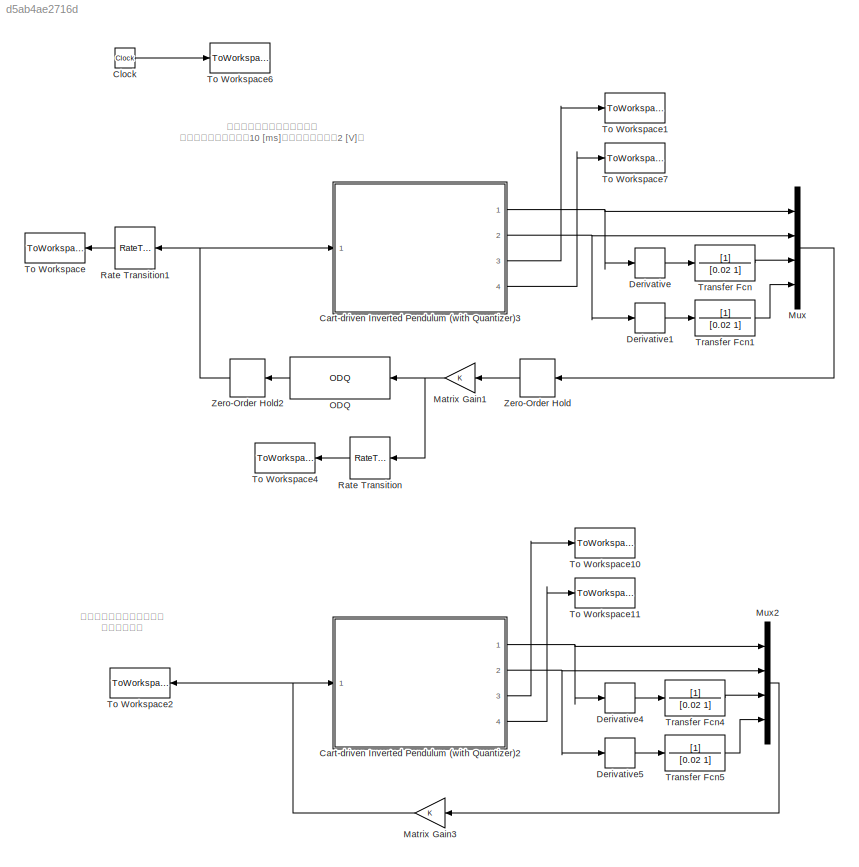
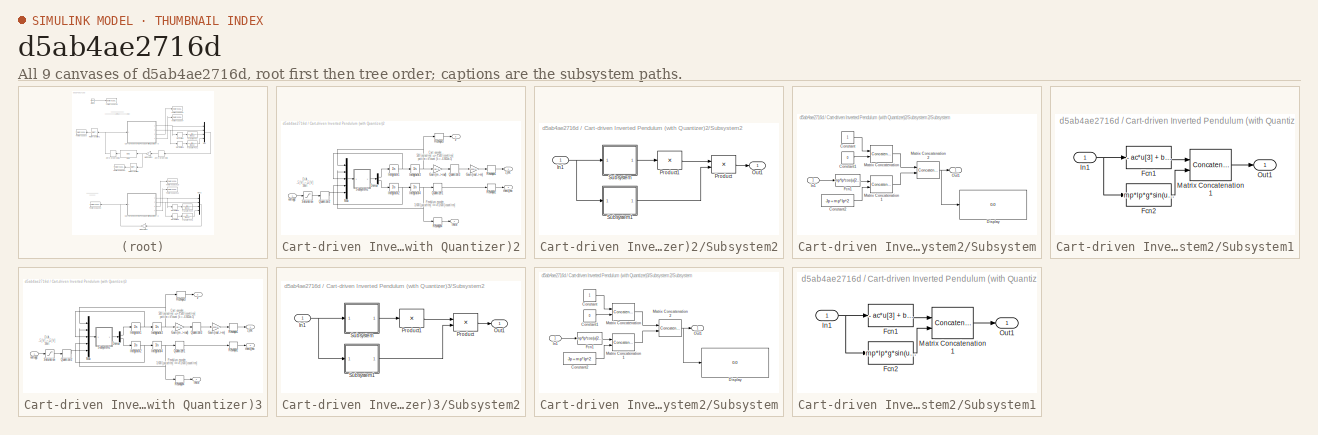
[diagram: thumbnail index - all 9 canvases of the model, root first then tree order]
MODEL slx_d5ab4ae2716d
KIND model
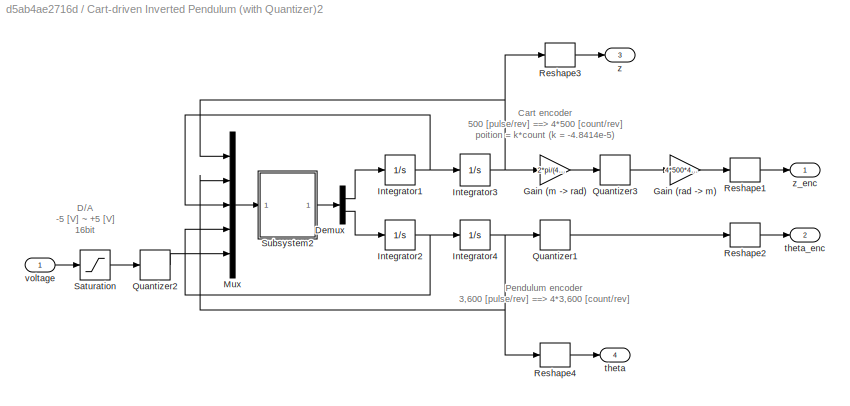
BLOCK [SubSystem] Cart-driven Inverted Pendulum (with Quantizer)2
  FunctionWithSeparateData = off
  MaskHideContents = off
  MinAlgLoopOccurrences = off
  Opaque = off
  Ports = [1, 4]
  PropExecContextOutsideSubsystem = off
  RTWSystemCode = Auto
  RequestExecContextInheritance = off
BLOCK [Demux] Cart-driven Inverted Pendulum (with Quantizer)2/Demux
  DisplayOption = bar
  Outputs = 2
  Ports = [1, 2]
BLOCK [Gain] Cart-driven Inverted Pendulum (with Quantizer)2/Gain (m -> rad)
  Gain = 2*pi/(4*500*4.8414e-5)
BLOCK [Gain] Cart-driven Inverted Pendulum (with Quantizer)2/Gain (rad -> m)
  Gain = 4*500*4.8414e-5/(2*pi)
BLOCK [Integrator] Cart-driven Inverted Pendulum (with Quantizer)2/Integrator1
  InitialCondition = dz_0
  Ports = [1, 1]
BLOCK [Integrator] Cart-driven Inverted Pendulum (with Quantizer)2/Integrator2
  InitialCondition = dtheta_0
  Ports = [1, 1]
BLOCK [Integrator] Cart-driven Inverted Pendulum (with Quantizer)2/Integrator3
  InitialCondition = z_0
  Ports = [1, 1]
BLOCK [Integrator] Cart-driven Inverted Pendulum (with Quantizer)2/Integrator4
  InitialCondition = theta_0
  Ports = [1, 1]
BLOCK [Mux] Cart-driven Inverted Pendulum (with Quantizer)2/Mux
  DisplayOption = bar
  Inputs = 5
  Ports = [5, 1]
BLOCK [Quantizer] Cart-driven Inverted Pendulum (with Quantizer)2/Quantizer1
  QuantizationInterval = 2*pi/(4*3600)
BLOCK [Quantizer] Cart-driven Inverted Pendulum (with Quantizer)2/Quantizer2
  QuantizationInterval = 10/2^(16)
BLOCK [Quantizer] Cart-driven Inverted Pendulum (with Quantizer)2/Quantizer3
  QuantizationInterval = 2*pi/(4*500)
BLOCK [Reshape] Cart-driven Inverted Pendulum (with Quantizer)2/Reshape1
  Ports = [1, 1]
BLOCK [Reshape] Cart-driven Inverted Pendulum (with Quantizer)2/Reshape2
  Ports = [1, 1]
BLOCK [Reshape] Cart-driven Inverted Pendulum (with Quantizer)2/Reshape3
  Ports = [1, 1]
BLOCK [Reshape] Cart-driven Inverted Pendulum (with Quantizer)2/Reshape4
  Ports = [1, 1]
BLOCK [Saturate] Cart-driven Inverted Pendulum (with Quantizer)2/Saturation
  InputPortMap = u0
  LowerLimit = -5
  Ports = [1, 1]
  UpperLimit = 5
BLOCK [SubSystem] Cart-driven Inverted Pendulum (with Quantizer)2/Subsystem2
  FunctionWithSeparateData = off
  MaskHideContents = off
  MinAlgLoopOccurrences = off
  Opaque = off
  Ports = [1, 1]
  PropExecContextOutsideSubsystem = off
  RTWSystemCode = Auto
  RequestExecContextInheritance = off
BLOCK [Inport] Cart-driven Inverted Pendulum (with Quantizer)2/Subsystem2/In1
  IconDisplay = Port number
BLOCK [Outport] Cart-driven Inverted Pendulum (with Quantizer)2/Subsystem2/Out1
  IconDisplay = Port number
BLOCK [Product] Cart-driven Inverted Pendulum (with Quantizer)2/Subsystem2/Product
  Multiplication = Matrix(*)
  Ports = [2, 1]
  RndMeth = Floor
BLOCK [Product] Cart-driven Inverted Pendulum (with Quantizer)2/Subsystem2/Product1
  Inputs = /
  Multiplication = Matrix(*)
  Ports = [1, 1]
  RndMeth = Floor
BLOCK [SubSystem] Cart-driven Inverted Pendulum (with Quantizer)2/Subsystem2/Subsystem
  FunctionWithSeparateData = off
  MaskHideContents = off
  MinAlgLoopOccurrences = off
  Opaque = off
  Ports = [1, 1]
  PropExecContextOutsideSubsystem = off
  RTWSystemCode = Auto
  RequestExecContextInheritance = off
BLOCK [Constant] Cart-driven Inverted Pendulum (with Quantizer)2/Subsystem2/Subsystem/Constant
BLOCK [Constant] Cart-driven Inverted Pendulum (with Quantizer)2/Subsystem2/Subsystem/Constant1
  Value = 0
BLOCK [Constant] Cart-driven Inverted Pendulum (with Quantizer)2/Subsystem2/Subsystem/Constant2
  Value = Jp + mp*lp^2
BLOCK [Display] Cart-driven Inverted Pendulum (with Quantizer)2/Subsystem2/Subsystem/Display
  Decimation = 1
  Lockdown = off
  Ports = [1]
BLOCK [Fcn] Cart-driven Inverted Pendulum (with Quantizer)2/Subsystem2/Subsystem/Fcn1
  Expr = mp*lp*cos(u[2])
BLOCK [Inport] Cart-driven Inverted Pendulum (with Quantizer)2/Subsystem2/Subsystem/In1
  IconDisplay = Port number
BLOCK [Concatenate] Cart-driven Inverted Pendulum (with Quantizer)2/Subsystem2/Subsystem/Matrix Concatenation
  ConcatenateDimension = 2
  Mode = Multidimensional array
  Ports = [2, 1]
BLOCK [Concatenate] Cart-driven Inverted Pendulum (with Quantizer)2/Subsystem2/Subsystem/Matrix Concatenation1
  ConcatenateDimension = 2
  Mode = Multidimensional array
  Ports = [2, 1]
BLOCK [Concatenate] Cart-driven Inverted Pendulum (with Quantizer)2/Subsystem2/Subsystem/Matrix Concatenation2
  Mode = Multidimensional array
  Ports = [2, 1]
BLOCK [Outport] Cart-driven Inverted Pendulum (with Quantizer)2/Subsystem2/Subsystem/Out1
  IconDisplay = Port number
BLOCK [SubSystem] Cart-driven Inverted Pendulum (with Quantizer)2/Subsystem2/Subsystem1
  FunctionWithSeparateData = off
  MaskHideContents = off
  MinAlgLoopOccurrences = off
  Opaque = off
  Ports = [1, 1]
  PropExecContextOutsideSubsystem = off
  RTWSystemCode = Auto
  RequestExecContextInheritance = off
BLOCK [Fcn] Cart-driven Inverted Pendulum (with Quantizer)2/Subsystem2/Subsystem1/Fcn1
  Expr = - ac*u[3] + bc*u[5]
BLOCK [Fcn] Cart-driven Inverted Pendulum (with Quantizer)2/Subsystem2/Subsystem1/Fcn2
  Expr = mp*lp*g*sin(u[2]) - mup*u[4]
BLOCK [Inport] Cart-driven Inverted Pendulum (with Quantizer)2/Subsystem2/Subsystem1/In1
  IconDisplay = Port number
BLOCK [Concatenate] Cart-driven Inverted Pendulum (with Quantizer)2/Subsystem2/Subsystem1/Matrix Concatenation1
  Mode = Multidimensional array
  Ports = [2, 1]
BLOCK [Outport] Cart-driven Inverted Pendulum (with Quantizer)2/Subsystem2/Subsystem1/Out1
  IconDisplay = Port number
BLOCK [Outport] Cart-driven Inverted Pendulum (with Quantizer)2/theta
  IconDisplay = Port number
  Port = 4
BLOCK [Outport] Cart-driven Inverted Pendulum (with Quantizer)2/theta_enc
  IconDisplay = Port number
  Port = 2
BLOCK [Inport] Cart-driven Inverted Pendulum (with Quantizer)2/voltage
  IconDisplay = Port number
BLOCK [Outport] Cart-driven Inverted Pendulum (with Quantizer)2/z
  IconDisplay = Port number
  Port = 3
BLOCK [Outport] Cart-driven Inverted Pendulum (with Quantizer)2/z_enc
  IconDisplay = Port number
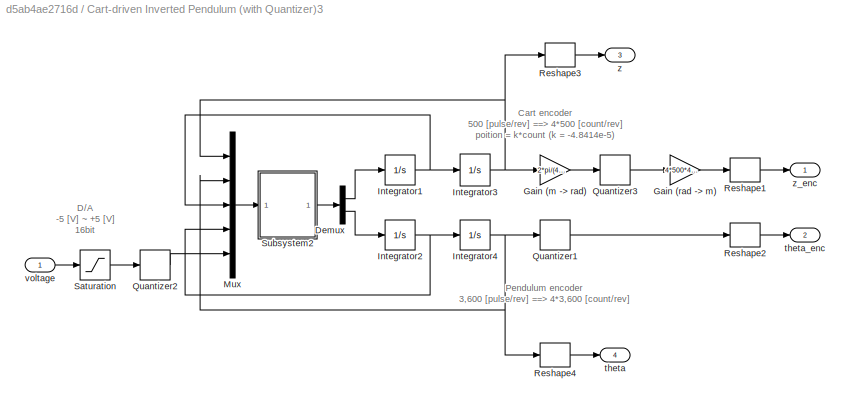
BLOCK [SubSystem] Cart-driven Inverted Pendulum (with Quantizer)3
  FunctionWithSeparateData = off
  MaskHideContents = off
  MinAlgLoopOccurrences = off
  Opaque = off
  Ports = [1, 4]
  PropExecContextOutsideSubsystem = off
  RTWSystemCode = Auto
  RequestExecContextInheritance = off
BLOCK [Demux] Cart-driven Inverted Pendulum (with Quantizer)3/Demux
  DisplayOption = bar
  Outputs = 2
  Ports = [1, 2]
BLOCK [Gain] Cart-driven Inverted Pendulum (with Quantizer)3/Gain (m -> rad)
  Gain = 2*pi/(4*500*4.8414e-5)
BLOCK [Gain] Cart-driven Inverted Pendulum (with Quantizer)3/Gain (rad -> m)
  Gain = 4*500*4.8414e-5/(2*pi)
BLOCK [Integrator] Cart-driven Inverted Pendulum (with Quantizer)3/Integrator1
  InitialCondition = dz_0
  Ports = [1, 1]
BLOCK [Integrator] Cart-driven Inverted Pendulum (with Quantizer)3/Integrator2
  InitialCondition = dtheta_0
  Ports = [1, 1]
BLOCK [Integrator] Cart-driven Inverted Pendulum (with Quantizer)3/Integrator3
  InitialCondition = z_0
  Ports = [1, 1]
BLOCK [Integrator] Cart-driven Inverted Pendulum (with Quantizer)3/Integrator4
  InitialCondition = theta_0
  Ports = [1, 1]
BLOCK [Mux] Cart-driven Inverted Pendulum (with Quantizer)3/Mux
  DisplayOption = bar
  Inputs = 5
  Ports = [5, 1]
BLOCK [Quantizer] Cart-driven Inverted Pendulum (with Quantizer)3/Quantizer1
  QuantizationInterval = 2*pi/(4*3600)
BLOCK [Quantizer] Cart-driven Inverted Pendulum (with Quantizer)3/Quantizer2
  QuantizationInterval = 10/2^(16)
BLOCK [Quantizer] Cart-driven Inverted Pendulum (with Quantizer)3/Quantizer3
  QuantizationInterval = 2*pi/(4*500)
BLOCK [Reshape] Cart-driven Inverted Pendulum (with Quantizer)3/Reshape1
  Ports = [1, 1]
BLOCK [Reshape] Cart-driven Inverted Pendulum (with Quantizer)3/Reshape2
  Ports = [1, 1]
BLOCK [Reshape] Cart-driven Inverted Pendulum (with Quantizer)3/Reshape3
  Ports = [1, 1]
BLOCK [Reshape] Cart-driven Inverted Pendulum (with Quantizer)3/Reshape4
  Ports = [1, 1]
BLOCK [Saturate] Cart-driven Inverted Pendulum (with Quantizer)3/Saturation
  InputPortMap = u0
  LowerLimit = -5
  Ports = [1, 1]
  UpperLimit = 5
BLOCK [SubSystem] Cart-driven Inverted Pendulum (with Quantizer)3/Subsystem2
  FunctionWithSeparateData = off
  MaskHideContents = off
  MinAlgLoopOccurrences = off
  Opaque = off
  Ports = [1, 1]
  PropExecContextOutsideSubsystem = off
  RTWSystemCode = Auto
  RequestExecContextInheritance = off
BLOCK [Inport] Cart-driven Inverted Pendulum (with Quantizer)3/Subsystem2/In1
  IconDisplay = Port number
BLOCK [Outport] Cart-driven Inverted Pendulum (with Quantizer)3/Subsystem2/Out1
  IconDisplay = Port number
BLOCK [Product] Cart-driven Inverted Pendulum (with Quantizer)3/Subsystem2/Product
  Multiplication = Matrix(*)
  Ports = [2, 1]
  RndMeth = Floor
BLOCK [Product] Cart-driven Inverted Pendulum (with Quantizer)3/Subsystem2/Product1
  Inputs = /
  Multiplication = Matrix(*)
  Ports = [1, 1]
  RndMeth = Floor
BLOCK [SubSystem] Cart-driven Inverted Pendulum (with Quantizer)3/Subsystem2/Subsystem
  FunctionWithSeparateData = off
  MaskHideContents = off
  MinAlgLoopOccurrences = off
  Opaque = off
  Ports = [1, 1]
  PropExecContextOutsideSubsystem = off
  RTWSystemCode = Auto
  RequestExecContextInheritance = off
BLOCK [Constant] Cart-driven Inverted Pendulum (with Quantizer)3/Subsystem2/Subsystem/Constant
BLOCK [Constant] Cart-driven Inverted Pendulum (with Quantizer)3/Subsystem2/Subsystem/Constant1
  Value = 0
BLOCK [Constant] Cart-driven Inverted Pendulum (with Quantizer)3/Subsystem2/Subsystem/Constant2
  Value = Jp + mp*lp^2
BLOCK [Display] Cart-driven Inverted Pendulum (with Quantizer)3/Subsystem2/Subsystem/Display
  Decimation = 1
  Lockdown = off
  Ports = [1]
BLOCK [Fcn] Cart-driven Inverted Pendulum (with Quantizer)3/Subsystem2/Subsystem/Fcn1
  Expr = mp*lp*cos(u[2])
BLOCK [Inport] Cart-driven Inverted Pendulum (with Quantizer)3/Subsystem2/Subsystem/In1
  IconDisplay = Port number
BLOCK [Concatenate] Cart-driven Inverted Pendulum (with Quantizer)3/Subsystem2/Subsystem/Matrix Concatenation
  ConcatenateDimension = 2
  Mode = Multidimensional array
  Ports = [2, 1]
BLOCK [Concatenate] Cart-driven Inverted Pendulum (with Quantizer)3/Subsystem2/Subsystem/Matrix Concatenation1
  ConcatenateDimension = 2
  Mode = Multidimensional array
  Ports = [2, 1]
BLOCK [Concatenate] Cart-driven Inverted Pendulum (with Quantizer)3/Subsystem2/Subsystem/Matrix Concatenation2
  Mode = Multidimensional array
  Ports = [2, 1]
BLOCK [Outport] Cart-driven Inverted Pendulum (with Quantizer)3/Subsystem2/Subsystem/Out1
  IconDisplay = Port number
BLOCK [SubSystem] Cart-driven Inverted Pendulum (with Quantizer)3/Subsystem2/Subsystem1
  FunctionWithSeparateData = off
  MaskHideContents = off
  MinAlgLoopOccurrences = off
  Opaque = off
  Ports = [1, 1]
  PropExecContextOutsideSubsystem = off
  RTWSystemCode = Auto
  RequestExecContextInheritance = off
BLOCK [Fcn] Cart-driven Inverted Pendulum (with Quantizer)3/Subsystem2/Subsystem1/Fcn1
  Expr = - ac*u[3] + bc*u[5]
BLOCK [Fcn] Cart-driven Inverted Pendulum (with Quantizer)3/Subsystem2/Subsystem1/Fcn2
  Expr = mp*lp*g*sin(u[2]) - mup*u[4]
BLOCK [Inport] Cart-driven Inverted Pendulum (with Quantizer)3/Subsystem2/Subsystem1/In1
  IconDisplay = Port number
BLOCK [Concatenate] Cart-driven Inverted Pendulum (with Quantizer)3/Subsystem2/Subsystem1/Matrix Concatenation1
  Mode = Multidimensional array
  Ports = [2, 1]
BLOCK [Outport] Cart-driven Inverted Pendulum (with Quantizer)3/Subsystem2/Subsystem1/Out1
  IconDisplay = Port number
BLOCK [Outport] Cart-driven Inverted Pendulum (with Quantizer)3/theta
  IconDisplay = Port number
  Port = 4
BLOCK [Outport] Cart-driven Inverted Pendulum (with Quantizer)3/theta_enc
  IconDisplay = Port number
  Port = 2
BLOCK [Inport] Cart-driven Inverted Pendulum (with Quantizer)3/voltage
  IconDisplay = Port number
BLOCK [Outport] Cart-driven Inverted Pendulum (with Quantizer)3/z
  IconDisplay = Port number
  Port = 3
BLOCK [Outport] Cart-driven Inverted Pendulum (with Quantizer)3/z_enc
  IconDisplay = Port number
BLOCK [Clock] Clock
BLOCK [Derivative] Derivative
BLOCK [Derivative] Derivative1
BLOCK [Derivative] Derivative4
BLOCK [Derivative] Derivative5
BLOCK [Gain] Matrix Gain1
  Gain = K
  Multiplication = Matrix(K*u)
BLOCK [Gain] Matrix Gain3
  Gain = K
  Multiplication = Matrix(K*u)
BLOCK [Mux] Mux
  DisplayOption = bar
  Ports = [4, 1]
BLOCK [Mux] Mux2
  DisplayOption = bar
  Ports = [4, 1]
BLOCK [Reference] ODQ  REF=odqblock/ODQ  (lib defined in mdl_3284093aac4b)
  A = Sigma_Q.a
  B1 = Sigma_Q.b1
  B2 = Sigma_Q.b2
  C = Sigma_Q.c
  Ports = [1, 1]
  SourceBlock = odqblock/ODQ
  SourceType = Opitimal Dynamic Quantizer
  Ts = ts
  d = d
BLOCK [RateTransition] Rate Transition
  OutPortSampleTime = 0.001
BLOCK [RateTransition] Rate Transition1
  OutPortSampleTime = 0.001
BLOCK [ToWorkspace] To Workspace
  MaxDataPoints = inf
  Ports = [1]
  SampleTime = -1
  VariableName = u_d
BLOCK [ToWorkspace] To Workspace1
  MaxDataPoints = inf
  Ports = [1]
  SampleTime = -1
  VariableName = z_d
BLOCK [ToWorkspace] To Workspace10
  MaxDataPoints = inf
  Ports = [1]
  SampleTime = -1
  VariableName = z_c
BLOCK [ToWorkspace] To Workspace11
  MaxDataPoints = inf
  Ports = [1]
  SampleTime = -1
  VariableName = theta_c
BLOCK [ToWorkspace] To Workspace2
  MaxDataPoints = inf
  Ports = [1]
  SampleTime = 0.001
  VariableName = u_c
BLOCK [ToWorkspace] To Workspace4
  MaxDataPoints = inf
  Ports = [1]
  SampleTime = -1
  VariableName = vd
BLOCK [ToWorkspace] To Workspace6
  MaxDataPoints = inf
  Ports = [1]
  SampleTime = -1
  VariableName = t
BLOCK [ToWorkspace] To Workspace7
  MaxDataPoints = inf
  Ports = [1]
  SampleTime = -1
  VariableName = theta_d
BLOCK [TransferFcn] Transfer Fcn
  Denominator = [0.02 1]
BLOCK [TransferFcn] Transfer Fcn1
  Denominator = [0.02 1]
BLOCK [TransferFcn] Transfer Fcn4
  Denominator = [0.02 1]
BLOCK [TransferFcn] Transfer Fcn5
  Denominator = [0.02 1]
BLOCK [ZeroOrderHold] Zero-Order Hold
  SampleTime = ts
BLOCK [ZeroOrderHold] Zero-Order Hold2
  SampleTime = ts
ANNOTATION (root): 最適レギュレータ＋量子化器 （サンプリング間隔：10 [ms]，量子化サイズ：2 [V]）
ANNOTATION (root): 連続時間最適レギュレータ （連続時間）
ANNOTATION Cart-driven Inverted Pendulum (with Quantizer)2: Cart encoder 500 [pulse/rev] ==> 4*500 [count/rev] poition = k*count (k = -4.8414e-5)
ANNOTATION Cart-driven Inverted Pendulum (with Quantizer)2: D/A -5 [V] ~ +5 [V] 16bit
ANNOTATION Cart-driven Inverted Pendulum (with Quantizer)2: Pendulum encoder 3,600 [pulse/rev] ==> 4*3,600 [count/rev]
ANNOTATION Cart-driven Inverted Pendulum (with Quantizer)3: Cart encoder 500 [pulse/rev] ==> 4*500 [count/rev] poition = k*count (k = -4.8414e-5)
ANNOTATION Cart-driven Inverted Pendulum (with Quantizer)3: D/A -5 [V] ~ +5 [V] 16bit
ANNOTATION Cart-driven Inverted Pendulum (with Quantizer)3: Pendulum encoder 3,600 [pulse/rev] ==> 4*3,600 [count/rev]
LINE Cart-driven Inverted Pendulum (with Quantizer)2/Demux:1 -> Cart-driven Inverted Pendulum (with Quantizer)2/Integrator1:1
LINE Cart-driven Inverted Pendulum (with Quantizer)2/Demux:2 -> Cart-driven Inverted Pendulum (with Quantizer)2/Integrator2:1
LINE Cart-driven Inverted Pendulum (with Quantizer)2/Gain (m -> rad):1 -> Cart-driven Inverted Pendulum (with Quantizer)2/Quantizer3:1
LINE Cart-driven Inverted Pendulum (with Quantizer)2/Gain (rad -> m):1 -> Cart-driven Inverted Pendulum (with Quantizer)2/Reshape1:1
NET Cart-driven Inverted Pendulum (with Quantizer)2/Integrator1:1 -> Cart-driven Inverted Pendulum (with Quantizer)2/Integrator3:1, Cart-driven Inverted Pendulum (with Quantizer)2/Mux:3
NET Cart-driven Inverted Pendulum (with Quantizer)2/Integrator2:1 -> Cart-driven Inverted Pendulum (with Quantizer)2/Integrator4:1, Cart-driven Inverted Pendulum (with Quantizer)2/Mux:4
NET Cart-driven Inverted Pendulum (with Quantizer)2/Integrator3:1 -> Cart-driven Inverted Pendulum (with Quantizer)2/Gain (m -> rad):1, Cart-driven Inverted Pendulum (with Quantizer)2/Mux:1, Cart-driven Inverted Pendulum (with Quantizer)2/Reshape3:1
NET Cart-driven Inverted Pendulum (with Quantizer)2/Integrator4:1 -> Cart-driven Inverted Pendulum (with Quantizer)2/Mux:2, Cart-driven Inverted Pendulum (with Quantizer)2/Quantizer1:1, Cart-driven Inverted Pendulum (with Quantizer)2/Reshape4:1
LINE Cart-driven Inverted Pendulum (with Quantizer)2/Mux:1 -> Cart-driven Inverted Pendulum (with Quantizer)2/Subsystem2:1
LINE Cart-driven Inverted Pendulum (with Quantizer)2/Quantizer1:1 -> Cart-driven Inverted Pendulum (with Quantizer)2/Reshape2:1
LINE Cart-driven Inverted Pendulum (with Quantizer)2/Quantizer2:1 -> Cart-driven Inverted Pendulum (with Quantizer)2/Mux:5
LINE Cart-driven Inverted Pendulum (with Quantizer)2/Quantizer3:1 -> Cart-driven Inverted Pendulum (with Quantizer)2/Gain (rad -> m):1
LINE Cart-driven Inverted Pendulum (with Quantizer)2/Reshape1:1 -> Cart-driven Inverted Pendulum (with Quantizer)2/z_enc:1
LINE Cart-driven Inverted Pendulum (with Quantizer)2/Reshape2:1 -> Cart-driven Inverted Pendulum (with Quantizer)2/theta_enc:1
LINE Cart-driven Inverted Pendulum (with Quantizer)2/Reshape3:1 -> Cart-driven Inverted Pendulum (with Quantizer)2/z:1
LINE Cart-driven Inverted Pendulum (with Quantizer)2/Reshape4:1 -> Cart-driven Inverted Pendulum (with Quantizer)2/theta:1
LINE Cart-driven Inverted Pendulum (with Quantizer)2/Saturation:1 -> Cart-driven Inverted Pendulum (with Quantizer)2/Quantizer2:1
NET Cart-driven Inverted Pendulum (with Quantizer)2/Subsystem2/In1:1 -> Cart-driven Inverted Pendulum (with Quantizer)2/Subsystem2/Subsystem1:1, Cart-driven Inverted Pendulum (with Quantizer)2/Subsystem2/Subsystem:1
LINE Cart-driven Inverted Pendulum (with Quantizer)2/Subsystem2/Product1:1 -> Cart-driven Inverted Pendulum (with Quantizer)2/Subsystem2/Product:1
LINE Cart-driven Inverted Pendulum (with Quantizer)2/Subsystem2/Product:1 -> Cart-driven Inverted Pendulum (with Quantizer)2/Subsystem2/Out1:1
LINE Cart-driven Inverted Pendulum (with Quantizer)2/Subsystem2/Subsystem/Constant1:1 -> Cart-driven Inverted Pendulum (with Quantizer)2/Subsystem2/Subsystem/Matrix Concatenation:2
LINE Cart-driven Inverted Pendulum (with Quantizer)2/Subsystem2/Subsystem/Constant2:1 -> Cart-driven Inverted Pendulum (with Quantizer)2/Subsystem2/Subsystem/Matrix Concatenation1:2
LINE Cart-driven Inverted Pendulum (with Quantizer)2/Subsystem2/Subsystem/Constant:1 -> Cart-driven Inverted Pendulum (with Quantizer)2/Subsystem2/Subsystem/Matrix Concatenation:1
LINE Cart-driven Inverted Pendulum (with Quantizer)2/Subsystem2/Subsystem/Fcn1:1 -> Cart-driven Inverted Pendulum (with Quantizer)2/Subsystem2/Subsystem/Matrix Concatenation1:1
LINE Cart-driven Inverted Pendulum (with Quantizer)2/Subsystem2/Subsystem/In1:1 -> Cart-driven Inverted Pendulum (with Quantizer)2/Subsystem2/Subsystem/Fcn1:1
LINE Cart-driven Inverted Pendulum (with Quantizer)2/Subsystem2/Subsystem/Matrix Concatenation1:1 -> Cart-driven Inverted Pendulum (with Quantizer)2/Subsystem2/Subsystem/Matrix Concatenation2:2
NET Cart-driven Inverted Pendulum (with Quantizer)2/Subsystem2/Subsystem/Matrix Concatenation2:1 -> Cart-driven Inverted Pendulum (with Quantizer)2/Subsystem2/Subsystem/Display:1, Cart-driven Inverted Pendulum (with Quantizer)2/Subsystem2/Subsystem/Out1:1
LINE Cart-driven Inverted Pendulum (with Quantizer)2/Subsystem2/Subsystem/Matrix Concatenation:1 -> Cart-driven Inverted Pendulum (with Quantizer)2/Subsystem2/Subsystem/Matrix Concatenation2:1
LINE Cart-driven Inverted Pendulum (with Quantizer)2/Subsystem2/Subsystem1/Fcn1:1 -> Cart-driven Inverted Pendulum (with Quantizer)2/Subsystem2/Subsystem1/Matrix Concatenation1:1
LINE Cart-driven Inverted Pendulum (with Quantizer)2/Subsystem2/Subsystem1/Fcn2:1 -> Cart-driven Inverted Pendulum (with Quantizer)2/Subsystem2/Subsystem1/Matrix Concatenation1:2
NET Cart-driven Inverted Pendulum (with Quantizer)2/Subsystem2/Subsystem1/In1:1 -> Cart-driven Inverted Pendulum (with Quantizer)2/Subsystem2/Subsystem1/Fcn1:1, Cart-driven Inverted Pendulum (with Quantizer)2/Subsystem2/Subsystem1/Fcn2:1
LINE Cart-driven Inverted Pendulum (with Quantizer)2/Subsystem2/Subsystem1/Matrix Concatenation1:1 -> Cart-driven Inverted Pendulum (with Quantizer)2/Subsystem2/Subsystem1/Out1:1
LINE Cart-driven Inverted Pendulum (with Quantizer)2/Subsystem2/Subsystem1:1 -> Cart-driven Inverted Pendulum (with Quantizer)2/Subsystem2/Product:2
LINE Cart-driven Inverted Pendulum (with Quantizer)2/Subsystem2/Subsystem:1 -> Cart-driven Inverted Pendulum (with Quantizer)2/Subsystem2/Product1:1
LINE Cart-driven Inverted Pendulum (with Quantizer)2/Subsystem2:1 -> Cart-driven Inverted Pendulum (with Quantizer)2/Demux:1
LINE Cart-driven Inverted Pendulum (with Quantizer)2/voltage:1 -> Cart-driven Inverted Pendulum (with Quantizer)2/Saturation:1
NET Cart-driven Inverted Pendulum (with Quantizer)2:1 -> Derivative4:1, Mux2:1
NET Cart-driven Inverted Pendulum (with Quantizer)2:2 -> Derivative5:1, Mux2:2
LINE Cart-driven Inverted Pendulum (with Quantizer)2:3 -> To Workspace10:1
LINE Cart-driven Inverted Pendulum (with Quantizer)2:4 -> To Workspace11:1
LINE Cart-driven Inverted Pendulum (with Quantizer)3/Demux:1 -> Cart-driven Inverted Pendulum (with Quantizer)3/Integrator1:1
LINE Cart-driven Inverted Pendulum (with Quantizer)3/Demux:2 -> Cart-driven Inverted Pendulum (with Quantizer)3/Integrator2:1
LINE Cart-driven Inverted Pendulum (with Quantizer)3/Gain (m -> rad):1 -> Cart-driven Inverted Pendulum (with Quantizer)3/Quantizer3:1
LINE Cart-driven Inverted Pendulum (with Quantizer)3/Gain (rad -> m):1 -> Cart-driven Inverted Pendulum (with Quantizer)3/Reshape1:1
NET Cart-driven Inverted Pendulum (with Quantizer)3/Integrator1:1 -> Cart-driven Inverted Pendulum (with Quantizer)3/Integrator3:1, Cart-driven Inverted Pendulum (with Quantizer)3/Mux:3
NET Cart-driven Inverted Pendulum (with Quantizer)3/Integrator2:1 -> Cart-driven Inverted Pendulum (with Quantizer)3/Integrator4:1, Cart-driven Inverted Pendulum (with Quantizer)3/Mux:4
NET Cart-driven Inverted Pendulum (with Quantizer)3/Integrator3:1 -> Cart-driven Inverted Pendulum (with Quantizer)3/Gain (m -> rad):1, Cart-driven Inverted Pendulum (with Quantizer)3/Mux:1, Cart-driven Inverted Pendulum (with Quantizer)3/Reshape3:1
NET Cart-driven Inverted Pendulum (with Quantizer)3/Integrator4:1 -> Cart-driven Inverted Pendulum (with Quantizer)3/Mux:2, Cart-driven Inverted Pendulum (with Quantizer)3/Quantizer1:1, Cart-driven Inverted Pendulum (with Quantizer)3/Reshape4:1
LINE Cart-driven Inverted Pendulum (with Quantizer)3/Mux:1 -> Cart-driven Inverted Pendulum (with Quantizer)3/Subsystem2:1
LINE Cart-driven Inverted Pendulum (with Quantizer)3/Quantizer1:1 -> Cart-driven Inverted Pendulum (with Quantizer)3/Reshape2:1
LINE Cart-driven Inverted Pendulum (with Quantizer)3/Quantizer2:1 -> Cart-driven Inverted Pendulum (with Quantizer)3/Mux:5
LINE Cart-driven Inverted Pendulum (with Quantizer)3/Quantizer3:1 -> Cart-driven Inverted Pendulum (with Quantizer)3/Gain (rad -> m):1
LINE Cart-driven Inverted Pendulum (with Quantizer)3/Reshape1:1 -> Cart-driven Inverted Pendulum (with Quantizer)3/z_enc:1
LINE Cart-driven Inverted Pendulum (with Quantizer)3/Reshape2:1 -> Cart-driven Inverted Pendulum (with Quantizer)3/theta_enc:1
LINE Cart-driven Inverted Pendulum (with Quantizer)3/Reshape3:1 -> Cart-driven Inverted Pendulum (with Quantizer)3/z:1
LINE Cart-driven Inverted Pendulum (with Quantizer)3/Reshape4:1 -> Cart-driven Inverted Pendulum (with Quantizer)3/theta:1
LINE Cart-driven Inverted Pendulum (with Quantizer)3/Saturation:1 -> Cart-driven Inverted Pendulum (with Quantizer)3/Quantizer2:1
NET Cart-driven Inverted Pendulum (with Quantizer)3/Subsystem2/In1:1 -> Cart-driven Inverted Pendulum (with Quantizer)3/Subsystem2/Subsystem1:1, Cart-driven Inverted Pendulum (with Quantizer)3/Subsystem2/Subsystem:1
LINE Cart-driven Inverted Pendulum (with Quantizer)3/Subsystem2/Product1:1 -> Cart-driven Inverted Pendulum (with Quantizer)3/Subsystem2/Product:1
LINE Cart-driven Inverted Pendulum (with Quantizer)3/Subsystem2/Product:1 -> Cart-driven Inverted Pendulum (with Quantizer)3/Subsystem2/Out1:1
LINE Cart-driven Inverted Pendulum (with Quantizer)3/Subsystem2/Subsystem/Constant1:1 -> Cart-driven Inverted Pendulum (with Quantizer)3/Subsystem2/Subsystem/Matrix Concatenation:2
LINE Cart-driven Inverted Pendulum (with Quantizer)3/Subsystem2/Subsystem/Constant2:1 -> Cart-driven Inverted Pendulum (with Quantizer)3/Subsystem2/Subsystem/Matrix Concatenation1:2
LINE Cart-driven Inverted Pendulum (with Quantizer)3/Subsystem2/Subsystem/Constant:1 -> Cart-driven Inverted Pendulum (with Quantizer)3/Subsystem2/Subsystem/Matrix Concatenation:1
LINE Cart-driven Inverted Pendulum (with Quantizer)3/Subsystem2/Subsystem/Fcn1:1 -> Cart-driven Inverted Pendulum (with Quantizer)3/Subsystem2/Subsystem/Matrix Concatenation1:1
LINE Cart-driven Inverted Pendulum (with Quantizer)3/Subsystem2/Subsystem/In1:1 -> Cart-driven Inverted Pendulum (with Quantizer)3/Subsystem2/Subsystem/Fcn1:1
LINE Cart-driven Inverted Pendulum (with Quantizer)3/Subsystem2/Subsystem/Matrix Concatenation1:1 -> Cart-driven Inverted Pendulum (with Quantizer)3/Subsystem2/Subsystem/Matrix Concatenation2:2
NET Cart-driven Inverted Pendulum (with Quantizer)3/Subsystem2/Subsystem/Matrix Concatenation2:1 -> Cart-driven Inverted Pendulum (with Quantizer)3/Subsystem2/Subsystem/Display:1, Cart-driven Inverted Pendulum (with Quantizer)3/Subsystem2/Subsystem/Out1:1
LINE Cart-driven Inverted Pendulum (with Quantizer)3/Subsystem2/Subsystem/Matrix Concatenation:1 -> Cart-driven Inverted Pendulum (with Quantizer)3/Subsystem2/Subsystem/Matrix Concatenation2:1
LINE Cart-driven Inverted Pendulum (with Quantizer)3/Subsystem2/Subsystem1/Fcn1:1 -> Cart-driven Inverted Pendulum (with Quantizer)3/Subsystem2/Subsystem1/Matrix Concatenation1:1
LINE Cart-driven Inverted Pendulum (with Quantizer)3/Subsystem2/Subsystem1/Fcn2:1 -> Cart-driven Inverted Pendulum (with Quantizer)3/Subsystem2/Subsystem1/Matrix Concatenation1:2
NET Cart-driven Inverted Pendulum (with Quantizer)3/Subsystem2/Subsystem1/In1:1 -> Cart-driven Inverted Pendulum (with Quantizer)3/Subsystem2/Subsystem1/Fcn1:1, Cart-driven Inverted Pendulum (with Quantizer)3/Subsystem2/Subsystem1/Fcn2:1
LINE Cart-driven Inverted Pendulum (with Quantizer)3/Subsystem2/Subsystem1/Matrix Concatenation1:1 -> Cart-driven Inverted Pendulum (with Quantizer)3/Subsystem2/Subsystem1/Out1:1
LINE Cart-driven Inverted Pendulum (with Quantizer)3/Subsystem2/Subsystem1:1 -> Cart-driven Inverted Pendulum (with Quantizer)3/Subsystem2/Product:2
LINE Cart-driven Inverted Pendulum (with Quantizer)3/Subsystem2/Subsystem:1 -> Cart-driven Inverted Pendulum (with Quantizer)3/Subsystem2/Product1:1
LINE Cart-driven Inverted Pendulum (with Quantizer)3/Subsystem2:1 -> Cart-driven Inverted Pendulum (with Quantizer)3/Demux:1
LINE Cart-driven Inverted Pendulum (with Quantizer)3/voltage:1 -> Cart-driven Inverted Pendulum (with Quantizer)3/Saturation:1
NET Cart-driven Inverted Pendulum (with Quantizer)3:1 -> Derivative:1, Mux:1
NET Cart-driven Inverted Pendulum (with Quantizer)3:2 -> Derivative1:1, Mux:2
LINE Cart-driven Inverted Pendulum (with Quantizer)3:3 -> To Workspace1:1
LINE Cart-driven Inverted Pendulum (with Quantizer)3:4 -> To Workspace7:1
LINE Clock:1 -> To Workspace6:1
LINE Derivative1:1 -> Transfer Fcn1:1
LINE Derivative4:1 -> Transfer Fcn4:1
LINE Derivative5:1 -> Transfer Fcn5:1
LINE Derivative:1 -> Transfer Fcn:1
NET Matrix Gain1:1 -> ODQ:1, Rate Transition:1
NET Matrix Gain3:1 -> Cart-driven Inverted Pendulum (with Quantizer)2:1, To Workspace2:1
LINE Mux2:1 -> Matrix Gain3:1
LINE Mux:1 -> Zero-Order Hold:1
LINE ODQ:1 -> Zero-Order Hold2:1
LINE Rate Transition1:1 -> To Workspace:1
LINE Rate Transition:1 -> To Workspace4:1
LINE Transfer Fcn1:1 -> Mux:4
LINE Transfer Fcn4:1 -> Mux2:3
LINE Transfer Fcn5:1 -> Mux2:4
LINE Transfer Fcn:1 -> Mux:3
NET Zero-Order Hold2:1 -> Cart-driven Inverted Pendulum (with Quantizer)3:1, Rate Transition1:1
LINE Zero-Order Hold:1 -> Matrix Gain1:1
note: NET lines group one-source signal fan-out (src -> all destinations, sorted); 1:1 wires keep LINE
